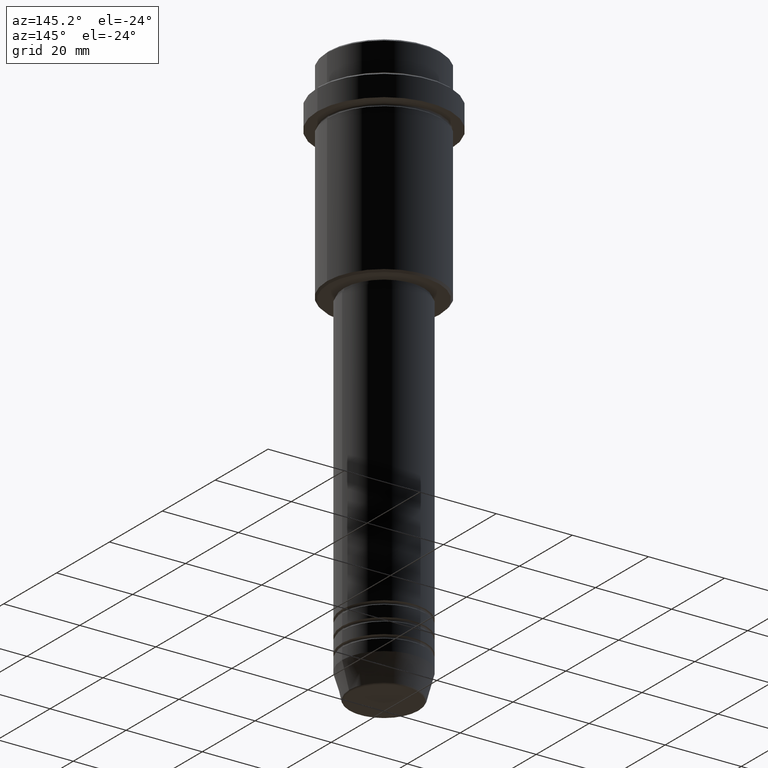
[diagram: clean part render]
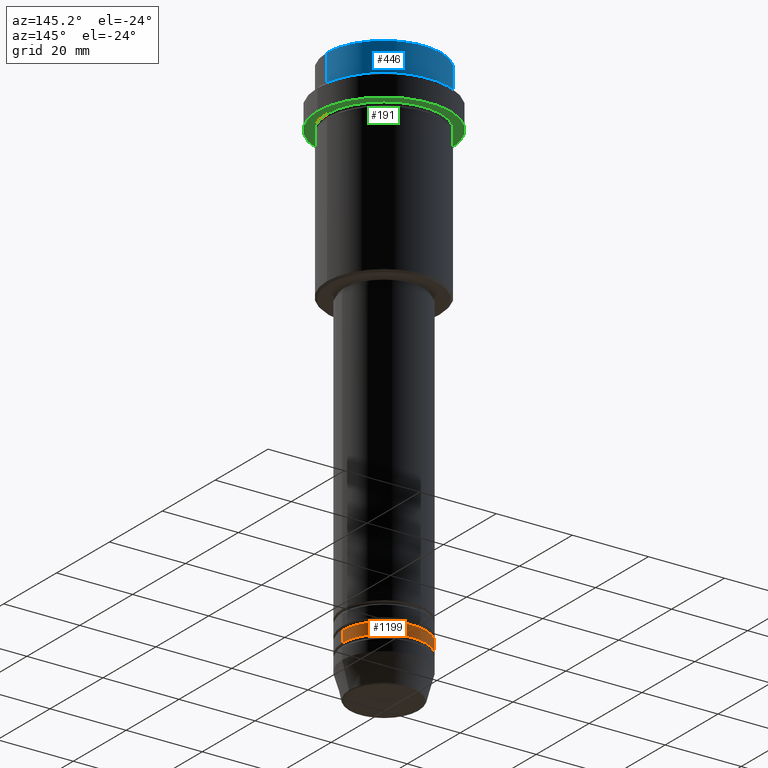
[diagram: same view with three faces highlighted in distinct colors, each labeled with its STEP entity id]
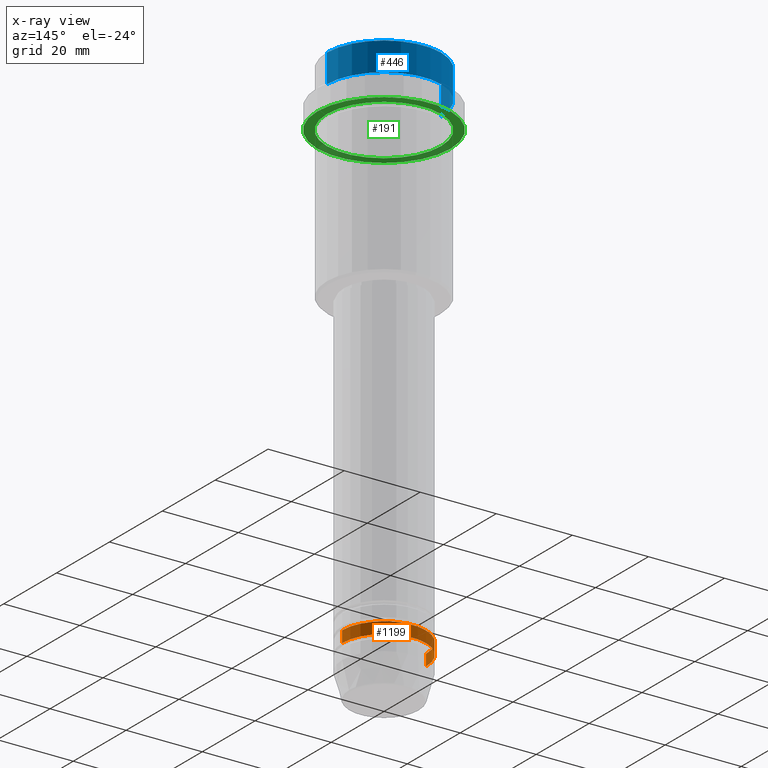
[diagram: x-ray of the same camera — body ghosted, the three highlighted faces saturated]
A machine part, auxiliary view with three faces highlighted in distinct colors.
The next image is the same camera in x-ray (body ghosted, the three faces saturated) — at least one of them is partly hidden behind the body in this view.
Their STEP definitions:

[orange] entity #1199 — the highlighted cylindrical surface (partial cylindrical patch) has radius 11 mm, axis along (-0, -0, 1).
#59 = EDGE_CURVE ( 'NONE', #741, #94, #1139, .T. ) ;
#72 = CARTESIAN_POINT ( 'NONE',  ( 11.00000000000000000, 0.000000000000000000, 0.000000000000000000 ) ) ;
#94 = VERTEX_POINT ( 'NONE', #480 ) ;
#96 = CARTESIAN_POINT ( 'NONE',  ( 11.00000000000000000, 0.000000000000000000, -135.9999999999998579 ) ) ;
#187 = CYLINDRICAL_SURFACE ( 'NONE', #1032, 11.00000000000000000 ) ;
#188 = DIRECTION ( 'NONE',  ( -0.000000000000000000, -0.000000000000000000, 1.000000000000000000 ) ) ;
#192 = CARTESIAN_POINT ( 'NONE',  ( 0.000000000000000000, 0.000000000000000000, 0.000000000000000000 ) ) ;
#214 = EDGE_LOOP ( 'NONE', ( #608, #910, #1021, #1286 ) ) ;
#350 = DIRECTION ( 'NONE',  ( -0.000000000000000000, -0.000000000000000000, 1.000000000000000000 ) ) ;
#403 = AXIS2_PLACEMENT_3D ( 'NONE', #1226, #188, #462 ) ;
#462 = DIRECTION ( 'NONE',  ( 1.000000000000000000, 0.000000000000000000, 0.000000000000000000 ) ) ;
#480 = CARTESIAN_POINT ( 'NONE',  ( -11.00000000000000000, 1.347111479062088405E-15, -135.9999999999998579 ) ) ;
#504 = DIRECTION ( 'NONE',  ( -0.000000000000000000, -0.000000000000000000, 1.000000000000000000 ) ) ;
#587 = EDGE_CURVE ( 'NONE', #983, #741, #1132, .T. ) ;
#589 = CARTESIAN_POINT ( 'NONE',  ( -11.00000000000000000, 1.347111479062088405E-15, -138.9999999999998579 ) ) ;
#608 = ORIENTED_EDGE ( 'NONE', *, *, #1302, .T. ) ;
#635 = VERTEX_POINT ( 'NONE', #589 ) ;
#670 = CARTESIAN_POINT ( 'NONE',  ( -11.00000000000000000, 1.347111479062088405E-15, 0.000000000000000000 ) ) ;
#741 = VERTEX_POINT ( 'NONE', #96 ) ;
#834 = DIRECTION ( 'NONE',  ( 1.000000000000000000, 0.000000000000000000, 0.000000000000000000 ) ) ;
#851 = DIRECTION ( 'NONE',  ( -0.000000000000000000, -0.000000000000000000, 1.000000000000000000 ) ) ;
#877 = DIRECTION ( 'NONE',  ( -0.000000000000000000, -0.000000000000000000, 1.000000000000000000 ) ) ;
#895 = DIRECTION ( 'NONE',  ( 1.000000000000000000, 0.000000000000000000, 0.000000000000000000 ) ) ;
#910 = ORIENTED_EDGE ( 'NONE', *, *, #1353, .T. ) ;
#983 = VERTEX_POINT ( 'NONE', #1137 ) ;
#1021 = ORIENTED_EDGE ( 'NONE', *, *, #59, .F. ) ;
#1032 = AXIS2_PLACEMENT_3D ( 'NONE', #192, #851, #834 ) ;
#1084 = CIRCLE ( 'NONE', #1172, 11.00000000000000000 ) ;
#1132 = LINE ( 'NONE', #72, #1167 ) ;
#1137 = CARTESIAN_POINT ( 'NONE',  ( 11.00000000000000000, 0.000000000000000000, -138.9999999999998579 ) ) ;
#1139 = CIRCLE ( 'NONE', #403, 11.00000000000000000 ) ;
#1167 = VECTOR ( 'NONE', #504, 1000.000000000000000 ) ;
#1172 = AXIS2_PLACEMENT_3D ( 'NONE', #1209, #350, #895 ) ;
#1177 = FACE_OUTER_BOUND ( 'NONE', #214, .T. ) ;
#1199 = ADVANCED_FACE ( 'NONE', ( #1177 ), #187, .T. ) ;
#1209 = CARTESIAN_POINT ( 'NONE',  ( 0.000000000000000000, 0.000000000000000000, -138.9999999999998579 ) ) ;
#1226 = CARTESIAN_POINT ( 'NONE',  ( 0.000000000000000000, 0.000000000000000000, -135.9999999999998579 ) ) ;
#1286 = ORIENTED_EDGE ( 'NONE', *, *, #587, .F. ) ;
#1302 = EDGE_CURVE ( 'NONE', #983, #635, #1084, .T. ) ;
#1319 = LINE ( 'NONE', #670, #1348 ) ;
#1348 = VECTOR ( 'NONE', #877, 1000.000000000000000 ) ;
#1353 = EDGE_CURVE ( 'NONE', #635, #94, #1319, .T. ) ;

[blue] entity #446 — the highlighted cylindrical surface (partial cylindrical patch) has radius 15 mm, axis along (-0, -0, 1).
#105 = DIRECTION ( 'NONE',  ( -0.000000000000000000, -0.000000000000000000, 1.000000000000000000 ) ) ;
#166 = CARTESIAN_POINT ( 'NONE',  ( 0.000000000000000000, 0.000000000000000000, -7.999999999999998224 ) ) ;
#205 = DIRECTION ( 'NONE',  ( -0.000000000000000000, -0.000000000000000000, 1.000000000000000000 ) ) ;
#226 = CARTESIAN_POINT ( 'NONE',  ( 0.000000000000000000, 0.000000000000000000, 0.000000000000000000 ) ) ;
#248 = LINE ( 'NONE', #1148, #362 ) ;
#264 = DIRECTION ( 'NONE',  ( -0.000000000000000000, -0.000000000000000000, 1.000000000000000000 ) ) ;
#269 = EDGE_LOOP ( 'NONE', ( #955, #349, #610, #960 ) ) ;
#273 = DIRECTION ( 'NONE',  ( 1.000000000000000000, 0.000000000000000000, 0.000000000000000000 ) ) ;
#349 = ORIENTED_EDGE ( 'NONE', *, *, #765, .T. ) ;
#362 = VECTOR ( 'NONE', #693, 1000.000000000000000 ) ;
#384 = AXIS2_PLACEMENT_3D ( 'NONE', #543, #982, #568 ) ;
#420 = CYLINDRICAL_SURFACE ( 'NONE', #449, 15.00000000000000000 ) ;
#446 = ADVANCED_FACE ( 'NONE', ( #1403 ), #420, .T. ) ;
#449 = AXIS2_PLACEMENT_3D ( 'NONE', #226, #105, #860 ) ;
#460 = VERTEX_POINT ( 'NONE', #559 ) ;
#513 = VERTEX_POINT ( 'NONE', #922 ) ;
#543 = CARTESIAN_POINT ( 'NONE',  ( 0.000000000000000000, 0.000000000000000000, -0.5000000000000246470 ) ) ;
#559 = CARTESIAN_POINT ( 'NONE',  ( 15.00000000000000000, 0.000000000000000000, -0.5000000000000246470 ) ) ;
#564 = EDGE_CURVE ( 'NONE', #649, #513, #889, .T. ) ;
#568 = DIRECTION ( 'NONE',  ( 1.000000000000000000, 0.000000000000000000, 0.000000000000000000 ) ) ;
#610 = ORIENTED_EDGE ( 'NONE', *, *, #1247, .T. ) ;
#639 = AXIS2_PLACEMENT_3D ( 'NONE', #166, #264, #273 ) ;
#649 = VERTEX_POINT ( 'NONE', #1062 ) ;
#693 = DIRECTION ( 'NONE',  ( -0.000000000000000000, -0.000000000000000000, 1.000000000000000000 ) ) ;
#750 = CARTESIAN_POINT ( 'NONE',  ( -15.00000000000000000, 1.836970198721029589E-15, 0.000000000000000000 ) ) ;
#765 = EDGE_CURVE ( 'NONE', #513, #1222, #974, .T. ) ;
#774 = VECTOR ( 'NONE', #205, 1000.000000000000000 ) ;
#860 = DIRECTION ( 'NONE',  ( 1.000000000000000000, 0.000000000000000000, 0.000000000000000000 ) ) ;
#889 = CIRCLE ( 'NONE', #639, 15.00000000000000000 ) ;
#922 = CARTESIAN_POINT ( 'NONE',  ( -15.00000000000000000, 1.836970198721029589E-15, -7.999999999999998224 ) ) ;
#955 = ORIENTED_EDGE ( 'NONE', *, *, #564, .T. ) ;
#960 = ORIENTED_EDGE ( 'NONE', *, *, #1094, .F. ) ;
#974 = LINE ( 'NONE', #750, #774 ) ;
#982 = DIRECTION ( 'NONE',  ( 0.000000000000000000, 0.000000000000000000, -1.000000000000000000 ) ) ;
#1009 = CIRCLE ( 'NONE', #384, 15.00000000000000000 ) ;
#1062 = CARTESIAN_POINT ( 'NONE',  ( 15.00000000000000000, 0.000000000000000000, -7.999999999999998224 ) ) ;
#1094 = EDGE_CURVE ( 'NONE', #649, #460, #248, .T. ) ;
#1148 = CARTESIAN_POINT ( 'NONE',  ( 15.00000000000000000, 0.000000000000000000, 0.000000000000000000 ) ) ;
#1222 = VERTEX_POINT ( 'NONE', #1406 ) ;
#1247 = EDGE_CURVE ( 'NONE', #1222, #460, #1009, .T. ) ;
#1403 = FACE_OUTER_BOUND ( 'NONE', #269, .T. ) ;
#1406 = CARTESIAN_POINT ( 'NONE',  ( -15.00000000000000000, 1.836970198721029589E-15, -0.5000000000000246470 ) ) ;

[green] entity #191 — the highlighted planar face has unit normal (0, 0, -1).
#57 = CARTESIAN_POINT ( 'NONE',  ( 0.000000000000000000, 0.000000000000000000, -14.99999999999998757 ) ) ;
#86 = AXIS2_PLACEMENT_3D ( 'NONE', #57, #1369, #1267 ) ;
#149 = FACE_BOUND ( 'NONE', #1397, .T. ) ;
#174 = CARTESIAN_POINT ( 'NONE',  ( 0.000000000000000000, 0.000000000000000000, -14.99999999999998579 ) ) ;
#179 = CIRCLE ( 'NONE', #222, 17.50000000000000000 ) ;
#191 = ADVANCED_FACE ( 'NONE', ( #149, #591 ), #1142, .T. ) ;
#209 = DIRECTION ( 'NONE',  ( -0.000000000000000000, -0.000000000000000000, 1.000000000000000000 ) ) ;
#222 = AXIS2_PLACEMENT_3D ( 'NONE', #1180, #406, #854 ) ;
#330 = CARTESIAN_POINT ( 'NONE',  ( -14.99999999999999645, 0.000000000000000000, -14.99999999999998579 ) ) ;
#331 = EDGE_CURVE ( 'NONE', #388, #577, #179, .T. ) ;
#343 = EDGE_CURVE ( 'NONE', #372, #1136, #498, .T. ) ;
#372 = VERTEX_POINT ( 'NONE', #330 ) ;
#388 = VERTEX_POINT ( 'NONE', #872 ) ;
#406 = DIRECTION ( 'NONE',  ( -0.000000000000000000, -0.000000000000000000, 1.000000000000000000 ) ) ;
#485 = DIRECTION ( 'NONE',  ( -1.000000000000000000, 0.000000000000000000, -0.000000000000000000 ) ) ;
#498 = CIRCLE ( 'NONE', #772, 14.99999999999999645 ) ;
#558 = DIRECTION ( 'NONE',  ( -1.000000000000000000, 0.000000000000000000, 0.000000000000000000 ) ) ;
#566 = ORIENTED_EDGE ( 'NONE', *, *, #805, .T. ) ;
#577 = VERTEX_POINT ( 'NONE', #811 ) ;
#591 = FACE_OUTER_BOUND ( 'NONE', #878, .T. ) ;
#597 = AXIS2_PLACEMENT_3D ( 'NONE', #867, #209, #558 ) ;
#600 = CARTESIAN_POINT ( 'NONE',  ( 0.000000000000000000, 17.50000000000000000, -14.99999999999998579 ) ) ;
#632 = DIRECTION ( 'NONE',  ( -0.000000000000000000, -0.000000000000000000, 1.000000000000000000 ) ) ;
#692 = ORIENTED_EDGE ( 'NONE', *, *, #343, .T. ) ;
#762 = ORIENTED_EDGE ( 'NONE', *, *, #331, .F. ) ;
#772 = AXIS2_PLACEMENT_3D ( 'NONE', #174, #632, #969 ) ;
#805 = EDGE_CURVE ( 'NONE', #1136, #372, #1008, .T. ) ;
#811 = CARTESIAN_POINT ( 'NONE',  ( -17.50000000000000000, 2.143131898507868248E-15, -14.99999999999998757 ) ) ;
#841 = AXIS2_PLACEMENT_3D ( 'NONE', #600, #1038, #485 ) ;
#854 = DIRECTION ( 'NONE',  ( 1.000000000000000000, 0.000000000000000000, 0.000000000000000000 ) ) ;
#867 = CARTESIAN_POINT ( 'NONE',  ( 0.000000000000000000, 0.000000000000000000, -14.99999999999998579 ) ) ;
#872 = CARTESIAN_POINT ( 'NONE',  ( 17.50000000000000000, 0.000000000000000000, -14.99999999999998757 ) ) ;
#878 = EDGE_LOOP ( 'NONE', ( #762, #999 ) ) ;
#969 = DIRECTION ( 'NONE',  ( -1.000000000000000000, 0.000000000000000000, 0.000000000000000000 ) ) ;
#992 = EDGE_CURVE ( 'NONE', #577, #388, #1233, .T. ) ;
#999 = ORIENTED_EDGE ( 'NONE', *, *, #992, .F. ) ;
#1008 = CIRCLE ( 'NONE', #597, 14.99999999999999645 ) ;
#1038 = DIRECTION ( 'NONE',  ( 0.000000000000000000, 0.000000000000000000, -1.000000000000000000 ) ) ;
#1136 = VERTEX_POINT ( 'NONE', #1372 ) ;
#1142 = PLANE ( 'NONE',  #841 ) ;
#1180 = CARTESIAN_POINT ( 'NONE',  ( 0.000000000000000000, 0.000000000000000000, -14.99999999999998757 ) ) ;
#1233 = CIRCLE ( 'NONE', #86, 17.50000000000000000 ) ;
#1267 = DIRECTION ( 'NONE',  ( 1.000000000000000000, 0.000000000000000000, 0.000000000000000000 ) ) ;
#1369 = DIRECTION ( 'NONE',  ( -0.000000000000000000, -0.000000000000000000, 1.000000000000000000 ) ) ;
#1372 = CARTESIAN_POINT ( 'NONE',  ( 14.99999999999999645, 1.836970198721029194E-15, -14.99999999999998579 ) ) ;
#1397 = EDGE_LOOP ( 'NONE', ( #692, #566 ) ) ;